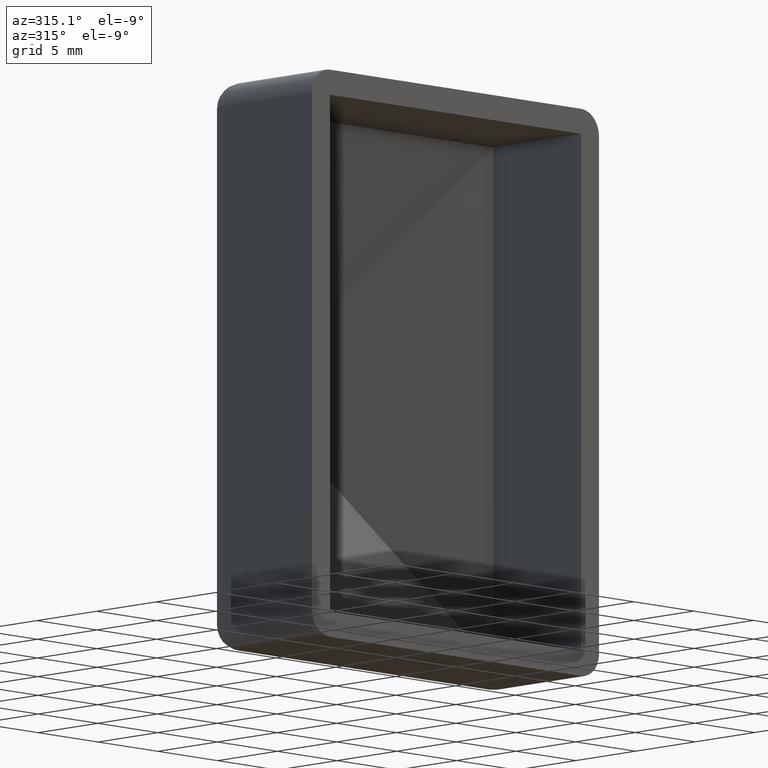
[diagram: clean part render]
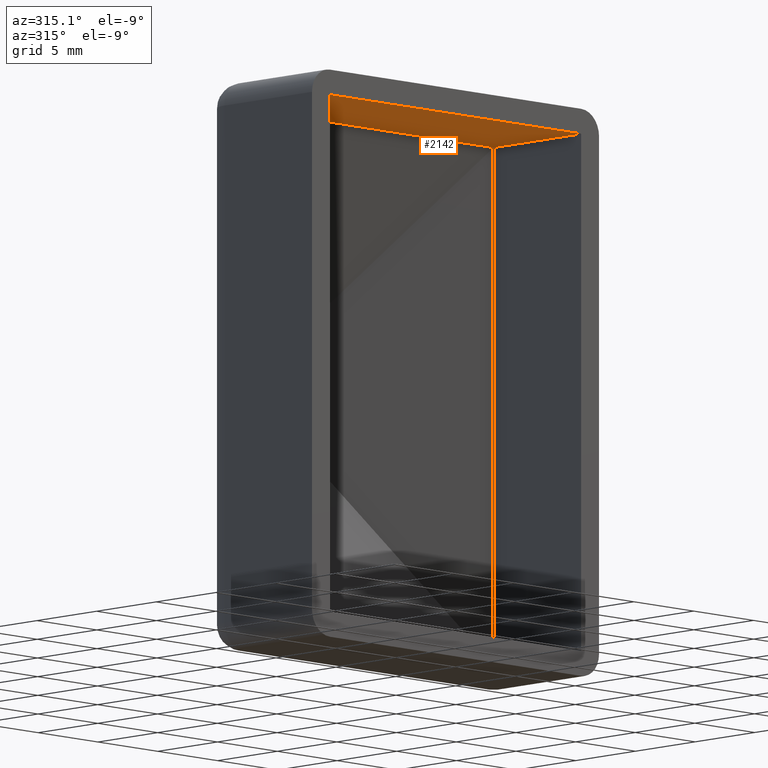
[diagram: same view with one face highlighted and labeled with its STEP entity id]
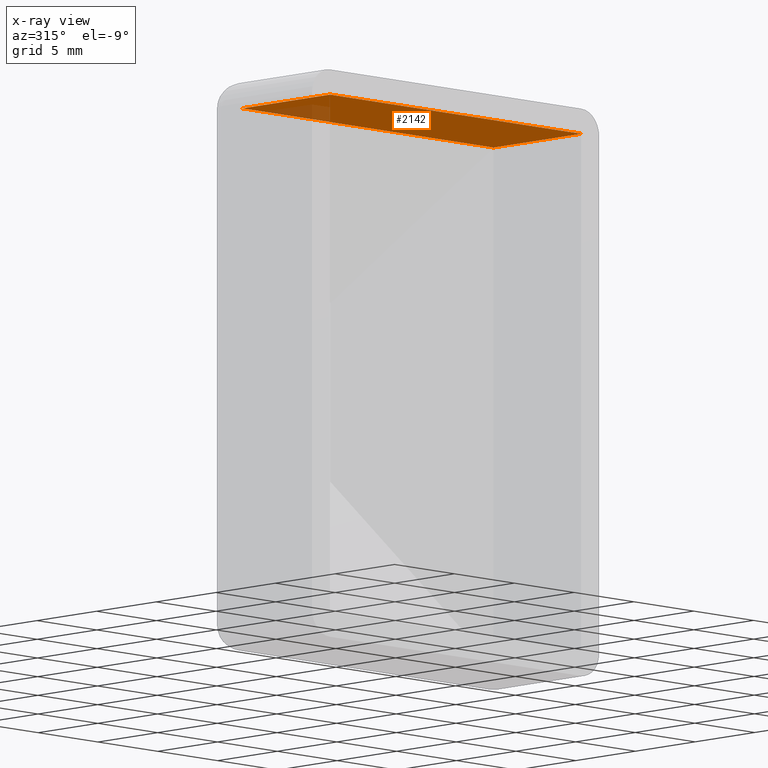
[diagram: x-ray of the same camera — body ghosted, the highlighted face saturated]
A machine part, auxiliary view. The second image highlights one B-rep face of the part: STEP entity #2142.
The next image is the same camera in x-ray: the body ghosted, the highlighted face saturated — about 9% of this face is hidden behind the body in this view.
In plain terms, the highlighted planar face has unit normal (0, 0, -1).
Its self-contained STEP definition (entity closure, byte-faithful):
#299 = VERTEX_POINT ( 'NONE', #6282 ) ;
#401 = PLANE ( 'NONE',  #3666 ) ;
#1009 = CARTESIAN_POINT ( 'NONE',  ( -10.49999999999998579, 7.350000000000012967, 15.50000000000003020 ) ) ;
#1080 = DIRECTION ( 'NONE',  ( 1.000000000000000000, -0.000000000000000000, 0.000000000000000000 ) ) ;
#1719 = LINE ( 'NONE', #12079, #10485 ) ;
#1733 = FACE_OUTER_BOUND ( 'NONE', #11034, .T. ) ;
#2142 = ADVANCED_FACE ( 'NONE', ( #1733 ), #401, .T. ) ;
#2399 = CARTESIAN_POINT ( 'NONE',  ( -10.49999999999998401, 30.00000000000000000, 15.50000000000003020 ) ) ;
#2659 = VERTEX_POINT ( 'NONE', #12221 ) ;
#2747 = EDGE_CURVE ( 'NONE', #2659, #299, #1719, .T. ) ;
#2808 = ORIENTED_EDGE ( 'NONE', *, *, #2747, .F. ) ;
#2993 = VECTOR ( 'NONE', #3317, 1000.000000000000000 ) ;
#3317 = DIRECTION ( 'NONE',  ( 1.000000000000000000, 0.000000000000000000, 0.000000000000000000 ) ) ;
#3666 = AXIS2_PLACEMENT_3D ( 'NONE', #11255, #10327, #4699 ) ;
#3702 = ORIENTED_EDGE ( 'NONE', *, *, #7092, .T. ) ;
#4517 = CARTESIAN_POINT ( 'NONE',  ( 10.50000000000000533, 7.350000000000010303, 15.50000000000004086 ) ) ;
#4537 = EDGE_CURVE ( 'NONE', #13883, #2659, #10107, .T. ) ;
#4699 = DIRECTION ( 'NONE',  ( -1.000000000000000000, 0.000000000000000000, -0.000000000000000000 ) ) ;
#5265 = LINE ( 'NONE', #7681, #2993 ) ;
#6076 = VECTOR ( 'NONE', #13318, 1000.000000000000000 ) ;
#6282 = CARTESIAN_POINT ( 'NONE',  ( 10.50000000000001776, 0.000000000000000000, 15.50000000000003020 ) ) ;
#7092 = EDGE_CURVE ( 'NONE', #13883, #10915, #5265, .T. ) ;
#7681 = CARTESIAN_POINT ( 'NONE',  ( -11.99999999999998934, 7.350000000000012079, 15.50000000000003197 ) ) ;
#7799 = ORIENTED_EDGE ( 'NONE', *, *, #4537, .F. ) ;
#9399 = VECTOR ( 'NONE', #11050, 1000.000000000000000 ) ;
#9931 = ORIENTED_EDGE ( 'NONE', *, *, #10940, .T. ) ;
#10107 = LINE ( 'NONE', #2399, #9399 ) ;
#10327 = DIRECTION ( 'NONE',  ( 0.000000000000000000, 0.000000000000000000, -1.000000000000000000 ) ) ;
#10485 = VECTOR ( 'NONE', #1080, 1000.000000000000000 ) ;
#10915 = VERTEX_POINT ( 'NONE', #4517 ) ;
#10940 = EDGE_CURVE ( 'NONE', #10915, #299, #11904, .T. ) ;
#11026 = CARTESIAN_POINT ( 'NONE',  ( 10.50000000000001776, 30.00000000000000000, 15.50000000000002842 ) ) ;
#11034 = EDGE_LOOP ( 'NONE', ( #2808, #7799, #3702, #9931 ) ) ;
#11050 = DIRECTION ( 'NONE',  ( 0.000000000000000000, -1.000000000000000000, 0.000000000000000000 ) ) ;
#11255 = CARTESIAN_POINT ( 'NONE',  ( -11.99999999999998224, 30.00000000000000000, 15.50000000000003020 ) ) ;
#11904 = LINE ( 'NONE', #11026, #6076 ) ;
#12079 = CARTESIAN_POINT ( 'NONE',  ( -11.99999999999998224, 0.000000000000000000, 15.50000000000003020 ) ) ;
#12221 = CARTESIAN_POINT ( 'NONE',  ( -10.49999999999998401, 0.000000000000000000, 15.50000000000003020 ) ) ;
#13318 = DIRECTION ( 'NONE',  ( 0.000000000000000000, -1.000000000000000000, 0.000000000000000000 ) ) ;
#13883 = VERTEX_POINT ( 'NONE', #1009 ) ;